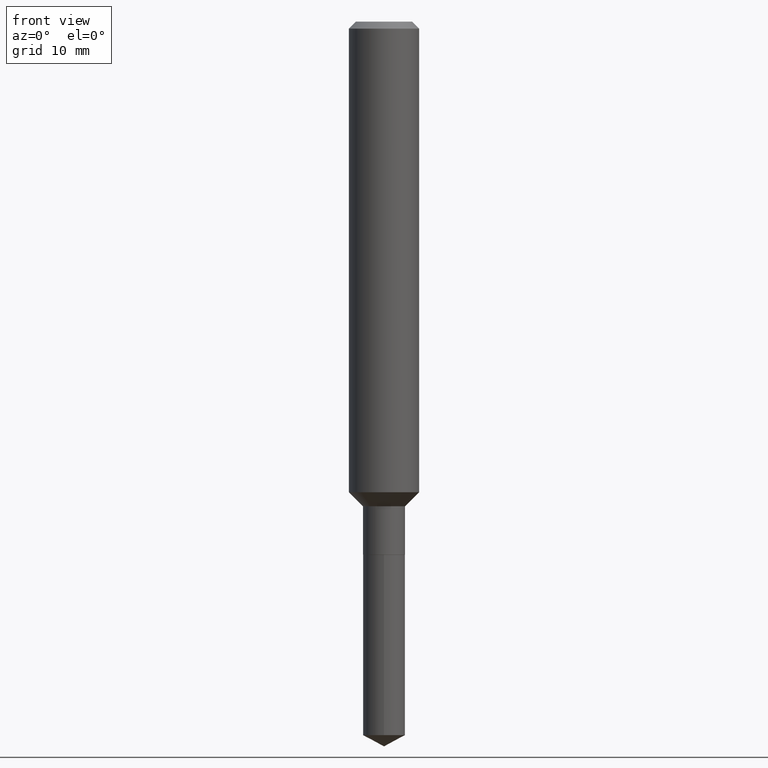
[diagram: clean part render]
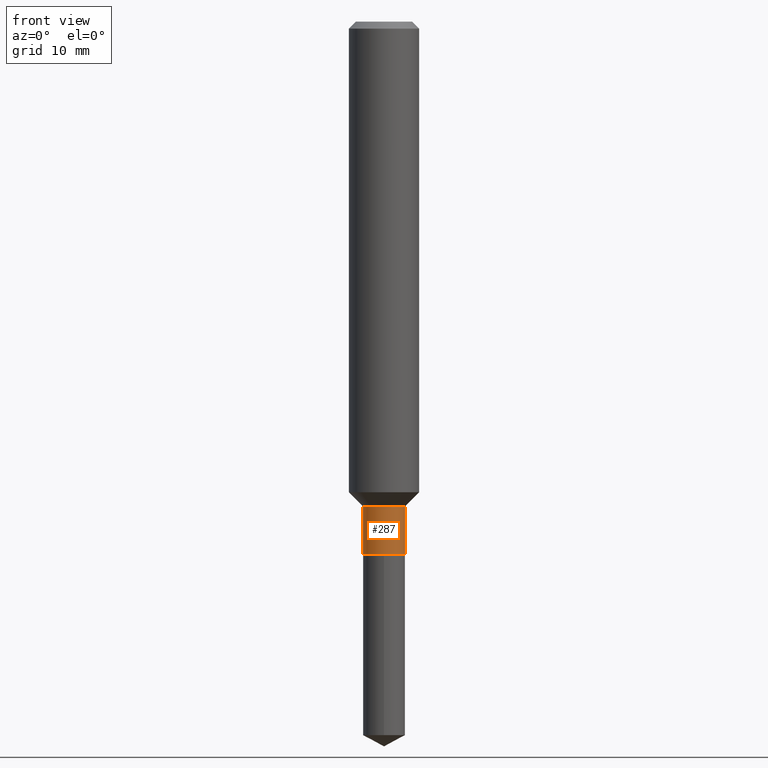
[diagram: same view with one face highlighted and labeled with its STEP entity id]
A machine part, front view. The second image highlights one B-rep face of the part: STEP entity #287.
In plain terms, the highlighted cylindrical surface (edge-blend (fillet) strip) has radius 1.7996 mm, axis along (-0, 0, 1).
Its self-contained STEP definition (entity closure, byte-faithful):
#8 = CARTESIAN_POINT ( 'NONE',  ( 0.07084999999999998244, -4.947429057140718608E-16, 3.454771245651419209E-30 ) ) ;
#15 = EDGE_LOOP ( 'NONE', ( #171, #168, #185, #404 ) ) ;
#32 = EDGE_CURVE ( 'NONE', #65, #373, #286, .T. ) ;
#42 = CARTESIAN_POINT ( 'NONE',  ( -0.07084999999999998244, 5.034195282860308569E-16, -3.485065511445599567E-30 ) ) ;
#64 = CIRCLE ( 'NONE', #478, 0.07084999999999998244 ) ;
#65 = VERTEX_POINT ( 'NONE', #266 ) ;
#73 = VECTOR ( 'NONE', #277, 39.37007874015748143 ) ;
#91 = CYLINDRICAL_SURFACE ( 'NONE', #273, 0.07084999999999998244 ) ;
#99 = VECTOR ( 'NONE', #279, 39.37007874015748143 ) ;
#103 = DIRECTION ( 'NONE',  ( -2.445468806185136597E-29, 3.491481338843145583E-15, 1.000000000000000000 ) ) ;
#119 = VERTEX_POINT ( 'NONE', #370 ) ;
#142 = CARTESIAN_POINT ( 'NONE',  ( 3.991494185455378715E-29, -5.698795841259781075E-15, -1.632199999999999651 ) ) ;
#143 = CARTESIAN_POINT ( 'NONE',  ( 4.388882866460464645E-29, -6.266161558821792612E-15, -1.794699999999999740 ) ) ;
#168 = ORIENTED_EDGE ( 'NONE', *, *, #369, .T. ) ;
#171 = ORIENTED_EDGE ( 'NONE', *, *, #435, .F. ) ;
#185 = ORIENTED_EDGE ( 'NONE', *, *, #442, .T. ) ;
#192 = AXIS2_PLACEMENT_3D ( 'NONE', #142, #103, #221 ) ;
#221 = DIRECTION ( 'NONE',  ( 1.000000000000000000, -6.982962677686265133E-15, 0.000000000000000000 ) ) ;
#241 = CARTESIAN_POINT ( 'NONE',  ( 0.000000000000000000, 0.000000000000000000, 0.000000000000000000 ) ) ;
#256 = VERTEX_POINT ( 'NONE', #467 ) ;
#266 = CARTESIAN_POINT ( 'NONE',  ( -0.07084999999999998244, -5.479059171754755297E-15, -1.632199999999999651 ) ) ;
#273 = AXIS2_PLACEMENT_3D ( 'NONE', #241, #474, #392 ) ;
#277 = DIRECTION ( 'NONE',  ( -2.445468806185136877E-29, 3.491481338843145188E-15, 1.000000000000000000 ) ) ;
#279 = DIRECTION ( 'NONE',  ( -2.445468806185136877E-29, 3.491481338843145188E-15, 1.000000000000000000 ) ) ;
#286 = CIRCLE ( 'NONE', #192, 0.07084999999999998244 ) ;
#287 = ADVANCED_FACE ( 'NONE', ( #439 ), #91, .T. ) ;
#301 = LINE ( 'NONE', #42, #73 ) ;
#369 = EDGE_CURVE ( 'NONE', #119, #256, #64, .T. ) ;
#370 = CARTESIAN_POINT ( 'NONE',  ( -0.07084999999999999631, -5.479059171754755297E-15, -1.794699999999999740 ) ) ;
#373 = VERTEX_POINT ( 'NONE', #391 ) ;
#378 = LINE ( 'NONE', #8, #99 ) ;
#391 = CARTESIAN_POINT ( 'NONE',  ( 0.07084999999999998244, -6.193538746973852542E-15, -1.632199999999999651 ) ) ;
#392 = DIRECTION ( 'NONE',  ( 1.000000000000000000, -6.982962677686266711E-15, 4.876176775795935232E-29 ) ) ;
#404 = ORIENTED_EDGE ( 'NONE', *, *, #32, .F. ) ;
#424 = DIRECTION ( 'NONE',  ( 1.000000000000000000, -6.982962677686265133E-15, 0.000000000000000000 ) ) ;
#435 = EDGE_CURVE ( 'NONE', #119, #65, #301, .T. ) ;
#439 = FACE_OUTER_BOUND ( 'NONE', #15, .T. ) ;
#442 = EDGE_CURVE ( 'NONE', #256, #373, #378, .T. ) ;
#467 = CARTESIAN_POINT ( 'NONE',  ( 0.07084999999999998244, -6.760904464535864078E-15, -1.794699999999999740 ) ) ;
#474 = DIRECTION ( 'NONE',  ( -2.445468806185136597E-29, 3.491481338843145583E-15, 1.000000000000000000 ) ) ;
#478 = AXIS2_PLACEMENT_3D ( 'NONE', #143, #483, #424 ) ;
#483 = DIRECTION ( 'NONE',  ( -2.445468806185136597E-29, 3.491481338843145583E-15, 1.000000000000000000 ) ) ;